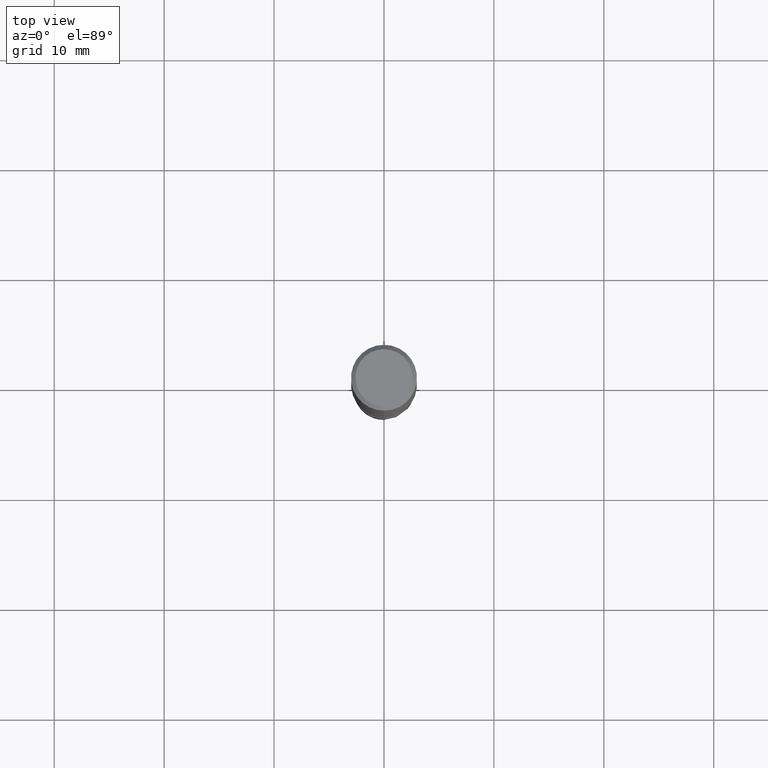
[diagram: clean part render]
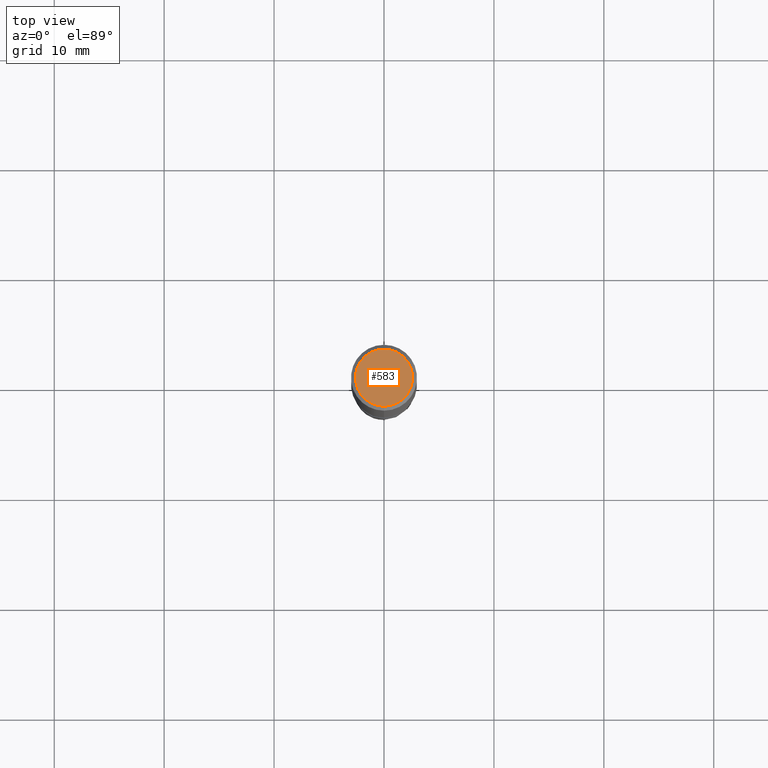
[diagram: same view with one face highlighted and labeled with its STEP entity id]
A machine part, top view. The second image highlights one B-rep face of the part: STEP entity #583.
In plain terms, the highlighted planar face has unit normal (-0, 0, 1).
Its self-contained STEP definition (entity closure, byte-faithful):
#345=EDGE_CURVE('',#719,#511,#838,.T.);
#463=EDGE_CURVE('',#511,#719,#969,.T.);
#511=VERTEX_POINT('',#1022);
#583=ADVANCED_FACE('',(#1103),#1104,.T.);
#719=VERTEX_POINT('',#1253);
#838=CIRCLE('',#1641,2.6);
#969=CIRCLE('',#2153,2.6);
#1022=CARTESIAN_POINT('',(3.18397651993818E-016,-2.6,0.0));
#1103=FACE_OUTER_BOUND('',#3815,.T.);
#1104=PLANE('',#3816);
#1253=CARTESIAN_POINT('',(0.0,2.6,0.0));
#1641=AXIS2_PLACEMENT_3D('',#5195,#5196,#5197);
#2153=AXIS2_PLACEMENT_3D('',#5373,#5374,#5375);
#3815=EDGE_LOOP('',(#5528,#5529));
#3816=AXIS2_PLACEMENT_3D('',#5530,#5531,#5532);
#5195=CARTESIAN_POINT('',(0.0,0.0,0.0));
#5196=DIRECTION('',(0.0,0.0,-1.0));
#5197=DIRECTION('',(0.0,1.0,0.0));
#5373=CARTESIAN_POINT('',(0.0,0.0,0.0));
#5374=DIRECTION('',(0.0,0.0,-1.0));
#5375=DIRECTION('',(0.0,1.0,0.0));
#5528=ORIENTED_EDGE('',*,*,#345,.F.);
#5529=ORIENTED_EDGE('',*,*,#463,.F.);
#5530=CARTESIAN_POINT('',(0.0,1.3,0.0));
#5531=DIRECTION('',(-0.0,0.0,1.0));
#5532=DIRECTION('',(0.0,-1.0,0.0));